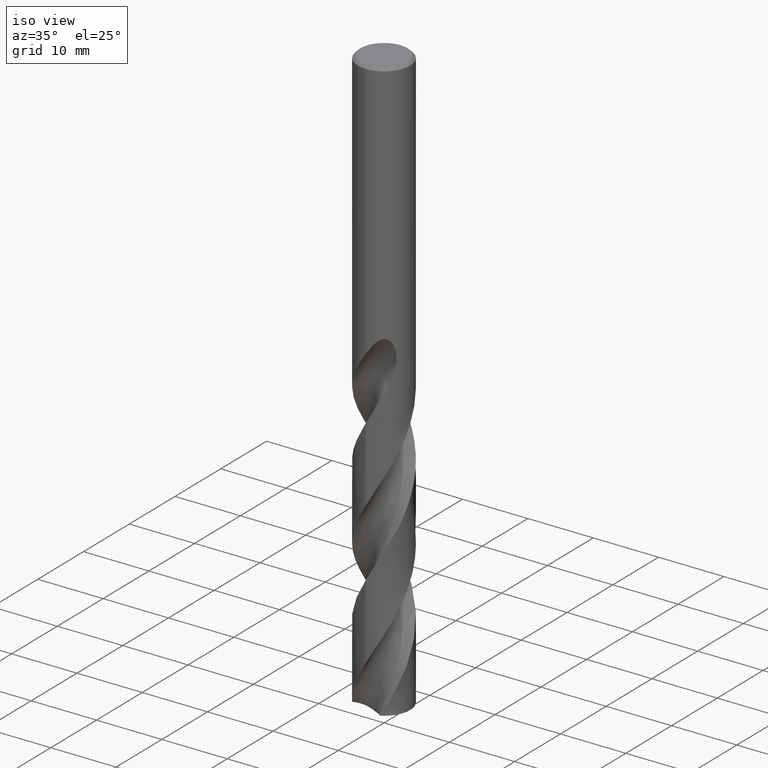
[diagram: clean part render]
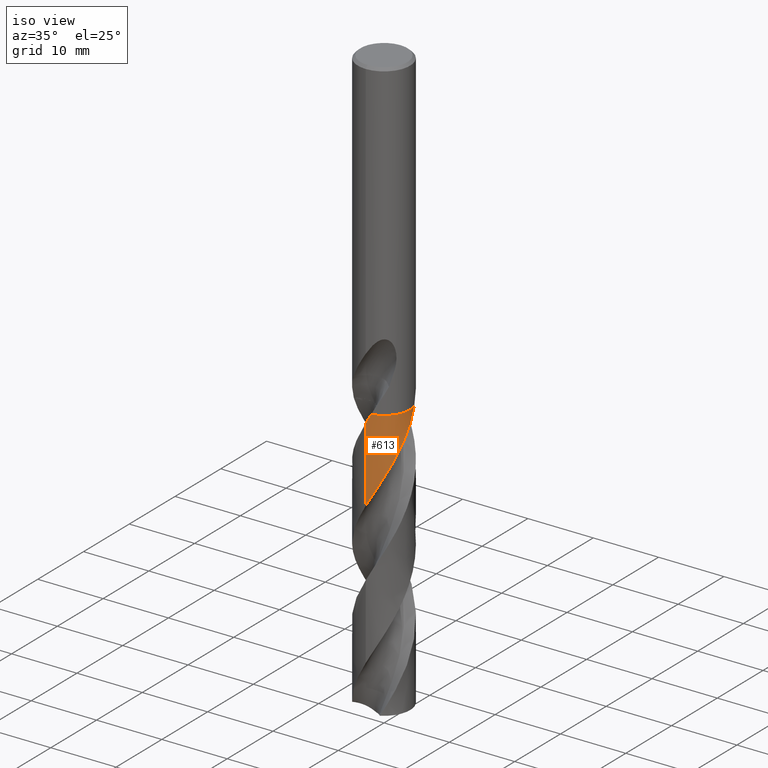
[diagram: same view with one face highlighted and labeled with its STEP entity id]
A machine part, iso view. The second image highlights one B-rep face of the part: STEP entity #613.
In plain terms, the highlighted conical surface has half-angle 0 deg.
Its self-contained STEP definition (entity closure, byte-faithful):
#285=EDGE_CURVE('',#551,#687,#785,.T.);
#373=EDGE_CURVE('',#681,#551,#882,.T.);
#517=EDGE_CURVE('',#657,#633,#1039,.T.);
#535=EDGE_CURVE('',#671,#657,#1060,.T.);
#551=VERTEX_POINT('',#1077);
#613=ADVANCED_FACE('',(#1143),#1144,.T.);
#633=VERTEX_POINT('',#1165);
#647=EDGE_CURVE('',#671,#687,#1180,.T.);
#657=VERTEX_POINT('',#1191);
#659=EDGE_CURVE('',#633,#681,#1193,.T.);
#671=VERTEX_POINT('',#1206);
#681=VERTEX_POINT('',#1217);
#687=VERTEX_POINT('',#1223);
#785=B_SPLINE_CURVE_WITH_KNOTS('',3,(#1364,#1365,#1366,#1367,#1368,#1369,#1370,#1371,#1372,#1373,#1374,#1375,#1376,#1377,#1378,#1379,#1380,#1381,#1382,#1383,#1384,#1385,#1386,#1387,#1388,#1389,#1390,#1391,#1392,#1393,#1394,#1395,#1396,#1397,#1398,#1399,#1400,#1401,#1402,#1403,#1404,#1405,#1406,#1407,#1408,#1409,#1410,#1411,#1412,#1413,#1414,#1415,#1416,#1417,#1418,#1419,#1420,#1421,#1422,#1423,#1424,#1425,#1426,#1427,#1428,#1429,#1430,#1431),.UNSPECIFIED.,.F.,.F.,(4,2,2,2,2,2,2,2,2,2,2,2,2,2,2,2,2,2,2,2,2,2,2,2,2,2,2,2,2,2,2,2,2,4),(0.0,1.21470660445528,2.88992575692301,3.66820543983101,6.72886018401619,8.27477984347292,9.89309175709029,11.4236836709163,12.9633022075795,15.2010892852707,16.8187820528851,18.3563353365538,19.8136682988432,22.16412077988,23.2174681111937,25.5895469747613,26.62190761884,29.016702483235,30.0285684083786,32.4537640772205,33.4409330301514,35.9091020663938,36.3889239319888,38.1095191270931,40.5949571447121,42.4431860010439,43.8255384808833,45.9266508747773,46.9853783580276,47.5146592901951,47.7791532860159,47.9113368759498,47.9774071174312,48.0434848055075),.UNSPECIFIED.);
#882=B_SPLINE_CURVE_WITH_KNOTS('',3,(#3397,#3398,#3399,#3400),.UNSPECIFIED.,.F.,.F.,(4,4),(0.0,0.0105301833078428),.UNSPECIFIED.);
#1039=B_SPLINE_CURVE_WITH_KNOTS('',3,(#4799,#4800,#4801,#4802),.UNSPECIFIED.,.F.,.F.,(4,4),(0.0,0.0129058687800696),.UNSPECIFIED.);
#1060=B_SPLINE_CURVE_WITH_KNOTS('',3,(#5449,#5450,#5451,#5452,#5453,#5454,#5455,#5456,#5457,#5458,#5459,#5460,#5461,#5462,#5463,#5464,#5465,#5466,#5467,#5468,#5469,#5470,#5471,#5472,#5473,#5474,#5475,#5476,#5477,#5478,#5479,#5480,#5481,#5482,#5483,#5484,#5485,#5486,#5487,#5488,#5489,#5490,#5491,#5492,#5493,#5494,#5495,#5496,#5497,#5498,#5499,#5500,#5501,#5502,#5503,#5504,#5505,#5506,#5507,#5508,#5509,#5510,#5511,#5512,#5513,#5514,#5515,#5516),.UNSPECIFIED.,.F.,.F.,(4,2,2,2,2,2,2,2,2,2,2,2,2,2,2,2,2,2,2,2,2,2,2,2,2,2,2,2,2,2,2,2,2,4),(0.0,0.0493956605018674,2.54333531475925,4.95671834376508,5.11327192892611,7.42455864099268,9.9078366327271,11.061783256222,12.2180228528709,14.7432899821327,15.3721329747508,18.3471272415403,18.430731429163,20.7491586545974,23.0243803739876,25.0103426921519,25.1644680534812,27.5308029059884,28.446373840541,28.4848763047989,31.8283184665091,31.8798887462776,33.5400344731466,34.371921163922,36.0374870123545,37.8455017339473,39.5955820913231,41.8245345099349,41.9095851580214,43.2517937429364,43.7549006291056,45.5209235641333,46.4020653415621,47.2781858079344),.UNSPECIFIED.);
#1077=CARTESIAN_POINT('',(0.791796654477506,-3.9207471436244,-48.005));
#1143=FACE_OUTER_BOUND('',#6577,.T.);
#1144=CONICAL_SURFACE('',#6578,3.99995,2.4070795639818E-006);
#1165=CARTESIAN_POINT('',(3.8396778428741,1.12074710481075,-48.0));
#1180=LINE('',#6719,#6720);
#1191=CARTESIAN_POINT('',(3.84048542271577,1.11797667467324,-48.005));
#1193=CIRCLE('',#6765,3.9999);
#1206=CARTESIAN_POINT('',(2.14874850402361E-012,-3.99993090915214,-60.8409349672388));
#1217=CARTESIAN_POINT('',(0.794634356464886,-3.92017298719401,-48.0));
#1223=CARTESIAN_POINT('',(6.25744557154397E-013,-3.99990333425071,-49.3851850878905));
#1364=CARTESIAN_POINT('',(0.792705029585015,-3.92056358340639,-48.0033995222108));
#1365=CARTESIAN_POINT('',(0.593834824186104,-3.96077432922653,-48.3537986233693));
#1366=CARTESIAN_POINT('',(0.392490692018804,-3.98573529056258,-48.7046214251891));
#1367=CARTESIAN_POINT('',(-0.0882340696343566,-4.00864997924571,-49.5386329232446));
#1368=CARTESIAN_POINT('',(-0.367671927464107,-3.9927541653395,-50.019538145981));
#1369=CARTESIAN_POINT('',(-0.77145880962735,-3.92695118198488,-50.7271914779638));
#1370=CARTESIAN_POINT('',(-0.89842995417066,-3.89986023719875,-50.9515547312676));
#1371=CARTESIAN_POINT('',(-1.5170091755006,-3.73607180376826,-52.0589419833636));
#1372=CARTESIAN_POINT('',(-1.98053933554995,-3.51236660554911,-52.933156897862));
#1373=CARTESIAN_POINT('',(-2.59596266310425,-3.05395147328899,-54.2622391198227));
#1374=CARTESIAN_POINT('',(-2.78730549666999,-2.88041281069791,-54.7070437746814));
#1375=CARTESIAN_POINT('',(-3.14226854965443,-2.48965695505272,-55.6194979819782));
#1376=CARTESIAN_POINT('',(-3.30295350078418,-2.27211464723646,-56.0848036614206));
#1377=CARTESIAN_POINT('',(-3.57047533737223,-1.82100729451371,-56.9934117125087));
#1378=CARTESIAN_POINT('',(-3.67934786079763,-1.58964260354859,-57.4341718083801));
#1379=CARTESIAN_POINT('',(-3.85210502274107,-1.10753750497279,-58.3196533815615));
#1380=CARTESIAN_POINT('',(-3.91520047106557,-0.858152976048953,-58.7618530912552));
#1381=CARTESIAN_POINT('',(-4.01033481769289,-0.23596535173475,-59.8518490023335));
#1382=CARTESIAN_POINT('',(-4.01491834018042,0.139008969278411,-60.4949814059941));
#1383=CARTESIAN_POINT('',(-3.93298402856832,0.77715755658142,-61.6070511445396));
#1384=CARTESIAN_POINT('',(-3.8716152194593,1.04053150740565,-62.0725750062154));
#1385=CARTESIAN_POINT('',(-3.70135668050921,1.53787767652384,-62.9831881023121));
#1386=CARTESIAN_POINT('',(-3.5952372389739,1.77188788084894,-63.4258841320657));
#1387=CARTESIAN_POINT('',(-3.34608744566466,2.20507230038598,-64.2897756079491));
#1388=CARTESIAN_POINT('',(-3.20597348429732,2.40421179194829,-64.7087145174554));
#1389=CARTESIAN_POINT('',(-2.7952114598011,2.88786339145886,-65.8077323462778));
#1390=CARTESIAN_POINT('',(-2.49895313205537,3.14780820912527,-66.482741714667));
#1391=CARTESIAN_POINT('',(-2.02164283541117,3.4559289804258,-67.4646734162658));
#1392=CARTESIAN_POINT('',(-1.86793022409704,3.54136066362483,-67.7681241220208));
#1393=CARTESIAN_POINT('',(-1.35179493145241,3.78530526836826,-68.7568953897338));
#1394=CARTESIAN_POINT('',(-0.970987412517461,3.90045912886311,-69.4380617605234));
#1395=CARTESIAN_POINT('',(-0.408688505132852,3.98275058712962,-70.4202762566773));
#1396=CARTESIAN_POINT('',(-0.236884348359483,3.99663991898641,-70.7177526681779));
#1397=CARTESIAN_POINT('',(0.334259060949001,4.0059017201977,-71.7071146667362));
#1398=CARTESIAN_POINT('',(0.732430636125259,3.95259967752154,-72.3947301519464));
#1399=CARTESIAN_POINT('',(1.27854126315366,3.79388390574565,-73.3776669899576));
#1400=CARTESIAN_POINT('',(1.43746632714937,3.73655349054647,-73.6693053113491));
#1401=CARTESIAN_POINT('',(1.96303023771429,3.50850943658649,-74.6615998487418));
#1402=CARTESIAN_POINT('',(2.30765651237816,3.29216911366655,-75.3578116932206));
#1403=CARTESIAN_POINT('',(2.73885344484995,2.91986105705723,-76.3424572959657));
#1404=CARTESIAN_POINT('',(2.85671661783404,2.80463879514428,-76.6270522196018));
#1405=CARTESIAN_POINT('',(3.24299454561875,2.37739859501013,-77.6246658506224));
#1406=CARTESIAN_POINT('',(3.47041384829746,2.03120836144196,-78.3329531496024));
#1407=CARTESIAN_POINT('',(3.67419034340208,1.58320651866214,-79.1836241627987));
#1408=CARTESIAN_POINT('',(3.70514248393421,1.50934761888226,-79.3219824209126));
#1409=CARTESIAN_POINT('',(3.83680691174472,1.16667282576662,-79.9572383353621));
#1410=CARTESIAN_POINT('',(3.91063907095874,0.888349619588474,-80.4536944616244));
#1411=CARTESIAN_POINT('',(4.01671772718102,0.194540274794326,-81.6681444662987));
#1412=CARTESIAN_POINT('',(4.01523323699355,-0.222581514919816,-82.3800810574192));
#1413=CARTESIAN_POINT('',(3.90108363382851,-0.936174040338928,-83.6316649069106));
#1414=CARTESIAN_POINT('',(3.81735358058601,-1.23409553441174,-84.1633535277535));
#1415=CARTESIAN_POINT('',(3.61237429870208,-1.73319602185818,-85.095828443397));
#1416=CARTESIAN_POINT('',(3.50643559037577,-1.93853353020258,-85.494109172271));
#1417=CARTESIAN_POINT('',(3.19678210042452,-2.42964113422144,-86.5003395027009));
#1418=CARTESIAN_POINT('',(2.97171302545019,-2.70037506684917,-87.1047550511199));
#1419=CARTESIAN_POINT('',(2.58401370824362,-3.0584493196208,-88.0168663477417));
#1420=CARTESIAN_POINT('',(2.44632362705642,-3.16965667973837,-88.3220777241166));
#1421=CARTESIAN_POINT('',(2.22948472122813,-3.32222700941133,-88.7805384054119));
#1422=CARTESIAN_POINT('',(2.15554900824961,-3.37066834626685,-88.9333040398171));
#1423=CARTESIAN_POINT('',(2.04235391810204,-3.43958326853041,-89.1624719184842));
#1424=CARTESIAN_POINT('',(2.00425950427646,-3.46191965296364,-89.2388270357694));
#1425=CARTESIAN_POINT('',(1.94658576095606,-3.49446521876496,-89.3533524604395));
#1426=CARTESIAN_POINT('',(1.92727842782503,-3.50515075763305,-89.3915148118556));
#1427=CARTESIAN_POINT('',(1.89819024514482,-3.52093646706824,-89.4487540281918));
#1428=CARTESIAN_POINT('',(1.88847474906645,-3.52615701474369,-89.4678296109569));
#1429=CARTESIAN_POINT('',(1.86900007698601,-3.53651801138471,-89.5059833991611));
#1430=CARTESIAN_POINT('',(1.85924430169938,-3.541656636867,-89.5250541010458));
#1431=CARTESIAN_POINT('',(1.84947166792346,-3.54675267668166,-89.5441190629352));
#3397=CARTESIAN_POINT('',(0.794634356464885,-3.92017298719402,-48.0));
#3398=CARTESIAN_POINT('',(0.792910523406018,-3.92052242233982,-48.0030375687002));
#3399=CARTESIAN_POINT('',(0.791186482682207,-3.92087071581655,-48.0060751496374));
#3400=CARTESIAN_POINT('',(0.789462235448373,-3.92121786748419,-48.0091127450448));
#4799=CARTESIAN_POINT('',(3.84148035283542,1.11455323965503,-48.011178033901));
#4800=CARTESIAN_POINT('',(3.84088125158673,1.11661810270383,-48.0074518769067));
#4801=CARTESIAN_POINT('',(3.84028041518985,1.11868272499954,-48.0037258649629));
#4802=CARTESIAN_POINT('',(3.8396778428741,1.12074710481073,-48.0));
#5449=CARTESIAN_POINT('',(3.37643723205018,2.14468450314384,-89.5441190629352));
#5450=CARTESIAN_POINT('',(3.37203960974127,2.15160773973686,-89.5298420468512));
#5451=CARTESIAN_POINT('',(3.36758779153997,2.15856930455091,-89.5154576563128));
#5452=CARTESIAN_POINT('',(3.13514642352867,2.51953967494594,-88.768278583085));
#5453=CARTESIAN_POINT('',(2.85159387156475,2.83693079791392,-88.0382298750346));
#5454=CARTESIAN_POINT('',(2.20407137925213,3.36309057365659,-86.59826714627));
#5455=CARTESIAN_POINT('',(1.84885603727622,3.57037824901335,-85.9021138024111));
#5456=CARTESIAN_POINT('',(1.44542855319316,3.72979220334375,-85.146278751592));
#5457=CARTESIAN_POINT('',(1.42080692423178,3.73924093063026,-85.1002676878953));
#5458=CARTESIAN_POINT('',(1.02979113091472,3.88486048073702,-84.3733014710748));
#5459=CARTESIAN_POINT('',(0.644708660085813,3.96720574254255,-83.7035761597261));
#5460=CARTESIAN_POINT('',(-0.169000755027505,4.01866010428783,-82.2956675837848));
#5461=CARTESIAN_POINT('',(-0.591980198724435,3.9784517631108,-81.5635101233966));
#5462=CARTESIAN_POINT('',(-1.1913895178792,3.82347986272793,-80.4959880296611));
#5463=CARTESIAN_POINT('',(-1.37742522012844,3.7604378143141,-80.1585914113997));
#5464=CARTESIAN_POINT('',(-1.73863169502823,3.60769901830542,-79.4799622600142));
#5465=CARTESIAN_POINT('',(-1.91310831113954,3.51825948904597,-79.1384787759744));
#5466=CARTESIAN_POINT('',(-2.44556226099517,3.19403438477661,-78.0575453913462));
#5467=CARTESIAN_POINT('',(-2.77239155000087,2.91477218034308,-77.3304659104256));
#5468=CARTESIAN_POINT('',(-3.11759827785608,2.50831253686866,-76.404707207783));
#5469=CARTESIAN_POINT('',(-3.18302141138948,2.42474999519122,-76.2196528665193));
#5470=CARTESIAN_POINT('',(-3.53909427257262,1.9306268972001,-75.1619052414289));
#5471=CARTESIAN_POINT('',(-3.75299159443172,1.47175937265243,-74.3117688642782));
#5472=CARTESIAN_POINT('',(-3.88002583458006,0.972258911400971,-73.414298090402));
#5473=CARTESIAN_POINT('',(-3.8834175571789,0.958621404142051,-73.3898077692349));
#5474=CARTESIAN_POINT('',(-3.97892206242222,0.565787200706126,-72.6857065158225));
#5475=CARTESIAN_POINT('',(-4.01538423134703,0.174280202358847,-72.0170168056545));
#5476=CARTESIAN_POINT('',(-3.97308027933103,-0.602166297290244,-70.6747010726664));
#5477=CARTESIAN_POINT('',(-3.89678127435974,-0.981378102468641,-70.0059688227429));
#5478=CARTESIAN_POINT('',(-3.65433939110241,-1.66085999260418,-68.7609132716697));
#5479=CARTESIAN_POINT('',(-3.50222644059911,-1.961027619091,-68.1872496470361));
#5480=CARTESIAN_POINT('',(-3.30078397180879,-2.25944112282712,-67.5606503475009));
#5481=CARTESIAN_POINT('',(-3.28610512916206,-2.28073640727199,-67.515570091981));
#5482=CARTESIAN_POINT('',(-3.04256435562648,-2.62682731349986,-66.7787349089219));
#5483=CARTESIAN_POINT('',(-2.76632509844971,-2.91659289582553,-66.0984847428891));
#5484=CARTESIAN_POINT('',(-2.3285306348539,-3.25597234119932,-65.1419090085913));
#5485=CARTESIAN_POINT('',(-2.20141567575887,-3.34318188289208,-64.8754854084203));
#5486=CARTESIAN_POINT('',(-2.06452051917058,-3.42597669466734,-64.5967818404118));
#5487=CARTESIAN_POINT('',(-2.0589940887586,-3.42930090176081,-64.5855442556996));
#5488=CARTESIAN_POINT('',(-1.57078831109525,-3.72134840307619,-63.5945927660675));
#5489=CARTESIAN_POINT('',(-1.03345740580942,-3.90470202139896,-62.6469905132154));
#5490=CARTESIAN_POINT('',(-0.467376430556949,-3.97254291382357,-61.6537137039835));
#5491=CARTESIAN_POINT('',(-0.458754586063215,-3.9735479192442,-61.6385906106537));
#5492=CARTESIAN_POINT('',(-0.170855648537757,-4.00614873671254,-61.1339826470402));
#5493=CARTESIAN_POINT('',(0.111840871614959,-4.00837143169941,-60.6486700820652));
#5494=CARTESIAN_POINT('',(0.534635026028725,-3.96657397028145,-59.9161696784437));
#5495=CARTESIAN_POINT('',(0.674805469782654,-3.94513688917861,-59.672117351298));
#5496=CARTESIAN_POINT('',(1.09094603821995,-3.8587032935747,-58.937595833371));
#5497=CARTESIAN_POINT('',(1.36111894626794,-3.77186917116388,-58.44457335531));
#5498=CARTESIAN_POINT('',(1.90125270674856,-3.53258723015238,-57.4229716090278));
#5499=CARTESIAN_POINT('',(2.16695871942375,-3.3761031587902,-56.896651083308));
#5500=CARTESIAN_POINT('',(2.64932421123509,-3.0114598095705,-55.850296402593));
#5501=CARTESIAN_POINT('',(2.86588162999976,-2.80621906942595,-55.3320604829846));
#5502=CARTESIAN_POINT('',(3.30262585050598,-2.28823713342984,-54.1617205010633));
#5503=CARTESIAN_POINT('',(3.50413460233364,-1.96543975101064,-53.5156267890483));
#5504=CARTESIAN_POINT('',(3.6629305369214,-1.60699738886095,-52.8340178612273));
#5505=CARTESIAN_POINT('',(3.66872272068856,-1.59373075040396,-52.8088580327088));
#5506=CARTESIAN_POINT('',(3.76514576258795,-1.36953813639135,-52.3848196486184));
#5507=CARTESIAN_POINT('',(3.83761953617199,-1.15104359887587,-51.9884071324772));
#5508=CARTESIAN_POINT('',(3.91095179782985,-0.84330398033927,-51.4407790996717));
#5509=CARTESIAN_POINT('',(3.92822569101115,-0.758781753707727,-51.2913408256106));
#5510=CARTESIAN_POINT('',(3.99376730072387,-0.3752190516586,-50.6179264784958));
#5511=CARTESIAN_POINT('',(4.01074411077558,-0.0716290214025677,-50.0961720919378));
#5512=CARTESIAN_POINT('',(3.98447873920254,0.382160752048435,-49.3108045926961));
#5513=CARTESIAN_POINT('',(3.96719485720007,0.532204436391505,-49.0501599761729));
#5514=CARTESIAN_POINT('',(3.91612149454171,0.828010564823526,-48.5279172921929));
#5515=CARTESIAN_POINT('',(3.88251374039952,0.973620670246832,-48.2655214375159));
#5516=CARTESIAN_POINT('',(3.84044825802427,1.11810432397114,-48.0047696247121));
#6577=EDGE_LOOP('',(#9140,#9141,#9142,#9143,#9144,#9145));
#6578=AXIS2_PLACEMENT_3D('',#9146,#9147,#9148);
#6719=CARTESIAN_POINT('',(4.89815875884899E-016,-3.99995,-68.7720595314676));
#6720=VECTOR('',#9189,1.0);
#6765=AXIS2_PLACEMENT_3D('',#9201,#9202,#9203);
#9140=ORIENTED_EDGE('',*,*,#647,.F.);
#9141=ORIENTED_EDGE('',*,*,#535,.T.);
#9142=ORIENTED_EDGE('',*,*,#517,.T.);
#9143=ORIENTED_EDGE('',*,*,#659,.T.);
#9144=ORIENTED_EDGE('',*,*,#373,.T.);
#9145=ORIENTED_EDGE('',*,*,#285,.T.);
#9146=CARTESIAN_POINT('',(0.0,0.0,-68.7720595314676));
#9147=DIRECTION('',(0.0,-0.0,-1.0));
#9148=DIRECTION('',(0.0,1.0,0.0));
#9189=DIRECTION('',(-2.94772492820526E-022,2.40707956397947E-006,0.999999999997103));
#9201=CARTESIAN_POINT('',(0.0,0.0,-48.0));
#9202=DIRECTION('',(0.0,0.0,-1.0));
#9203=DIRECTION('',(0.0,1.0,0.0));